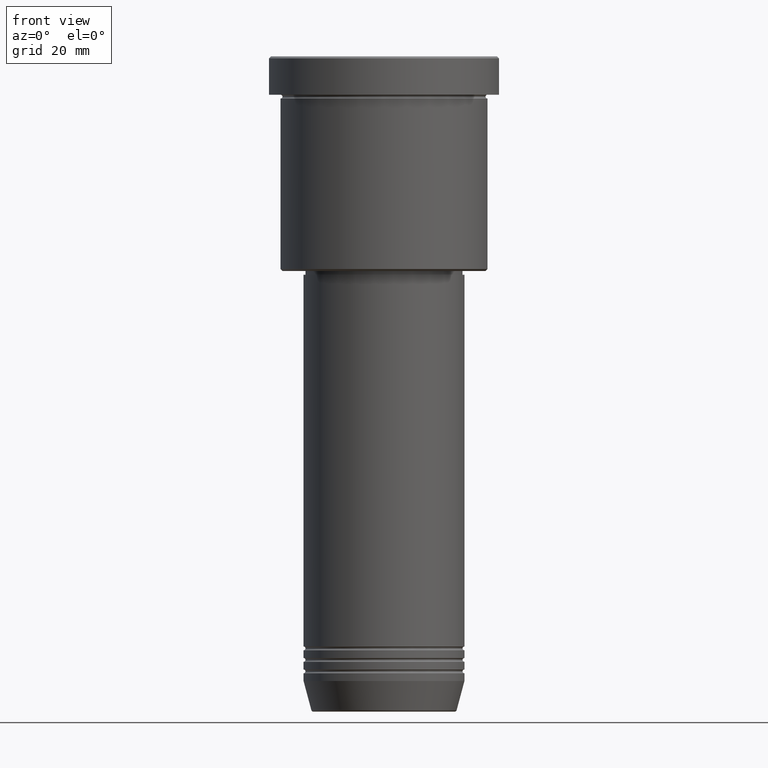
[diagram: clean part render]
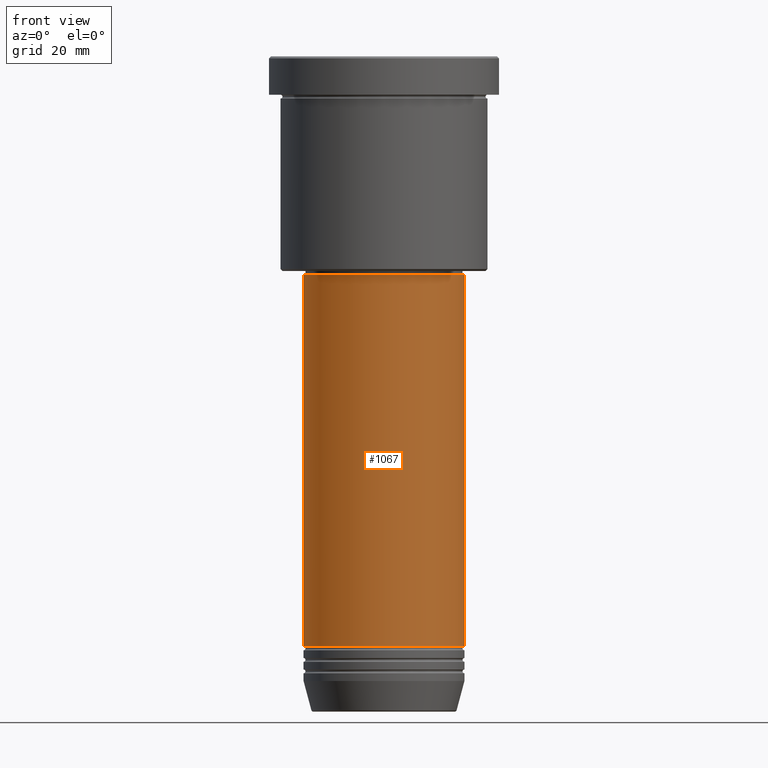
[diagram: same view with one face highlighted and labeled with its STEP entity id]
A machine part, front view. The second image highlights one B-rep face of the part: STEP entity #1067.
In plain terms, the highlighted cylindrical surface (partial cylindrical patch) has radius 21 mm, axis along (-0, -0, 1).
Its self-contained STEP definition (entity closure, byte-faithful):
#28 = VECTOR ( 'NONE', #924, 1000.000000000000000 ) ;
#124 = CIRCLE ( 'NONE', #523, 21.00000000000000000 ) ;
#156 = CARTESIAN_POINT ( 'NONE',  ( -21.00000000000000000, 2.571758278209441661E-15, -153.9999999999999716 ) ) ;
#279 = DIRECTION ( 'NONE',  ( -0.000000000000000000, -0.000000000000000000, 1.000000000000000000 ) ) ;
#302 = VECTOR ( 'NONE', #545, 1000.000000000000000 ) ;
#306 = DIRECTION ( 'NONE',  ( -0.000000000000000000, -0.000000000000000000, 1.000000000000000000 ) ) ;
#323 = VERTEX_POINT ( 'NONE', #786 ) ;
#342 = EDGE_CURVE ( 'NONE', #1146, #323, #124, .T. ) ;
#362 = EDGE_CURVE ( 'NONE', #1146, #415, #987, .T. ) ;
#409 = CIRCLE ( 'NONE', #910, 21.00000000000000000 ) ;
#415 = VERTEX_POINT ( 'NONE', #1183 ) ;
#482 = EDGE_CURVE ( 'NONE', #415, #888, #409, .T. ) ;
#523 = AXIS2_PLACEMENT_3D ( 'NONE', #609, #1165, #1156 ) ;
#545 = DIRECTION ( 'NONE',  ( -0.000000000000000000, -0.000000000000000000, 1.000000000000000000 ) ) ;
#609 = CARTESIAN_POINT ( 'NONE',  ( 0.000000000000000000, 0.000000000000000000, -153.9999999999999716 ) ) ;
#622 = CARTESIAN_POINT ( 'NONE',  ( -21.00000000000000000, 2.571758278209441661E-15, 0.000000000000000000 ) ) ;
#623 = AXIS2_PLACEMENT_3D ( 'NONE', #1142, #306, #680 ) ;
#651 = CARTESIAN_POINT ( 'NONE',  ( 21.00000000000000000, 0.000000000000000000, -57.00000000000000000 ) ) ;
#680 = DIRECTION ( 'NONE',  ( 1.000000000000000000, 0.000000000000000000, 0.000000000000000000 ) ) ;
#761 = CYLINDRICAL_SURFACE ( 'NONE', #623, 21.00000000000000000 ) ;
#777 = EDGE_CURVE ( 'NONE', #323, #888, #971, .T. ) ;
#778 = ORIENTED_EDGE ( 'NONE', *, *, #342, .T. ) ;
#780 = FACE_OUTER_BOUND ( 'NONE', #975, .T. ) ;
#786 = CARTESIAN_POINT ( 'NONE',  ( 21.00000000000000000, 0.000000000000000000, -153.9999999999999716 ) ) ;
#888 = VERTEX_POINT ( 'NONE', #651 ) ;
#910 = AXIS2_PLACEMENT_3D ( 'NONE', #1093, #279, #1007 ) ;
#924 = DIRECTION ( 'NONE',  ( -0.000000000000000000, -0.000000000000000000, 1.000000000000000000 ) ) ;
#971 = LINE ( 'NONE', #1172, #302 ) ;
#975 = EDGE_LOOP ( 'NONE', ( #988, #778, #1162, #1158 ) ) ;
#987 = LINE ( 'NONE', #622, #28 ) ;
#988 = ORIENTED_EDGE ( 'NONE', *, *, #362, .F. ) ;
#1007 = DIRECTION ( 'NONE',  ( 1.000000000000000000, 0.000000000000000000, 0.000000000000000000 ) ) ;
#1067 = ADVANCED_FACE ( 'NONE', ( #780 ), #761, .T. ) ;
#1093 = CARTESIAN_POINT ( 'NONE',  ( 0.000000000000000000, 0.000000000000000000, -57.00000000000000000 ) ) ;
#1142 = CARTESIAN_POINT ( 'NONE',  ( 0.000000000000000000, 0.000000000000000000, 0.000000000000000000 ) ) ;
#1146 = VERTEX_POINT ( 'NONE', #156 ) ;
#1156 = DIRECTION ( 'NONE',  ( 1.000000000000000000, 0.000000000000000000, 0.000000000000000000 ) ) ;
#1158 = ORIENTED_EDGE ( 'NONE', *, *, #482, .F. ) ;
#1162 = ORIENTED_EDGE ( 'NONE', *, *, #777, .T. ) ;
#1165 = DIRECTION ( 'NONE',  ( -0.000000000000000000, -0.000000000000000000, 1.000000000000000000 ) ) ;
#1172 = CARTESIAN_POINT ( 'NONE',  ( 21.00000000000000000, 0.000000000000000000, 0.000000000000000000 ) ) ;
#1183 = CARTESIAN_POINT ( 'NONE',  ( -21.00000000000000000, 2.571758278209441661E-15, -57.00000000000000000 ) ) ;